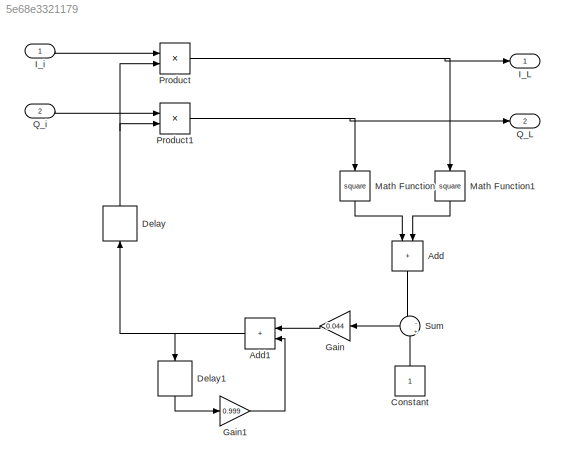
MODEL slx_5e68e3321179
KIND model
CONFIG AbsTol = auto
CONFIG EnableMultiTasking = off
CONFIG FixedStep = auto
CONFIG MaxStep = auto
CONFIG MinStep = auto
CONFIG RelTol = 1e-3
CONFIG SampleTimeConstraint = Unconstrained
CONFIG SolverName = VariableStepAuto
CONFIG StartTime = 0.0
CONFIG StopTime = 10.0
BLOCK [Sum] Add
  IconShape = rectangular
  NameLocation = left
BLOCK [Sum] Add1
  IconShape = rectangular
  NameLocation = top
BLOCK [Constant] Constant
  NameLocation = right
BLOCK [Delay] Delay
  DelayLength = 1
  InitialCondition = 0
  InputPortMap = u0
  NameLocation = right
BLOCK [Delay] Delay1
  DelayLength = 1
  InitialCondition = 0
  InputPortMap = u0
  NameLocation = right
BLOCK [Gain] Gain
  Gain = 0.044
BLOCK [Gain] Gain1
  Gain = 0.999
BLOCK [Outport] I_L
BLOCK [Inport] I_i
BLOCK [Math] Math Function
  NameLocation = left
  Operator = square
BLOCK [Math] Math Function1
  NameLocation = left
  Operator = square
BLOCK [Product] Product
BLOCK [Product] Product1
BLOCK [Outport] Q_L
  Port = 2
BLOCK [Inport] Q_i
  Port = 2
BLOCK [Sum] Sum
  Inputs = -|+
  NameLocation = top
NET Add1:1 -> Delay1:1, Delay:1
LINE Add:1 -> Sum:1
LINE Constant:1 -> Sum:2
LINE Delay1:1 -> Gain1:1
NET Delay:1 -> Product1:2, Product:2
LINE Gain1:1 -> Add1:2
LINE Gain:1 -> Add1:1
LINE I_i:1 -> Product:1
LINE Math Function1:1 -> Add:2
LINE Math Function:1 -> Add:1
NET Product1:1 -> Math Function:1, Q_L:1
NET Product:1 -> I_L:1, Math Function1:1
LINE Q_i:1 -> Product1:1
LINE Sum:1 -> Gain:1
note: NET lines group one-source signal fan-out (src -> all destinations, sorted); 1:1 wires keep LINE
